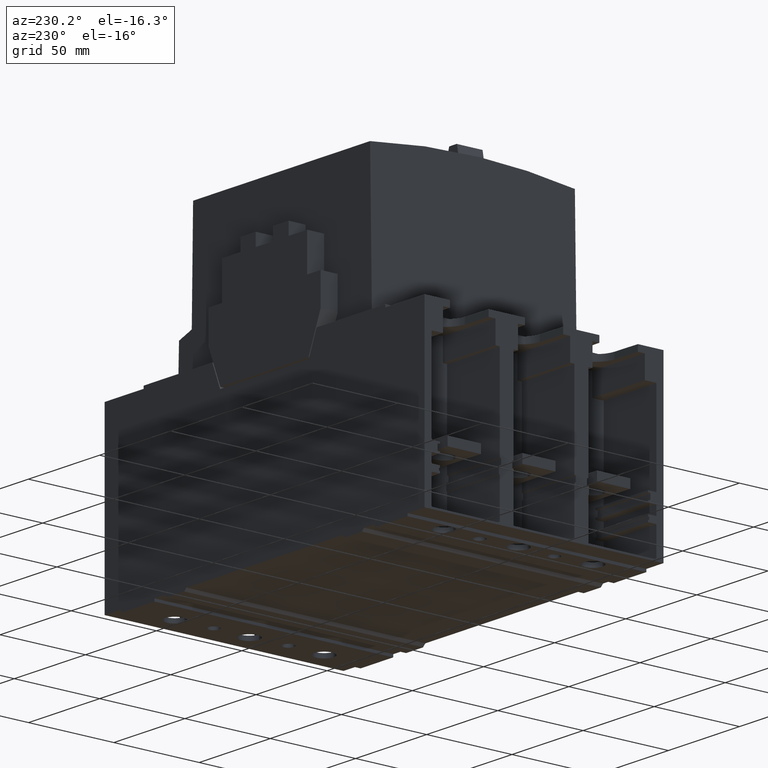
[diagram: clean part render]
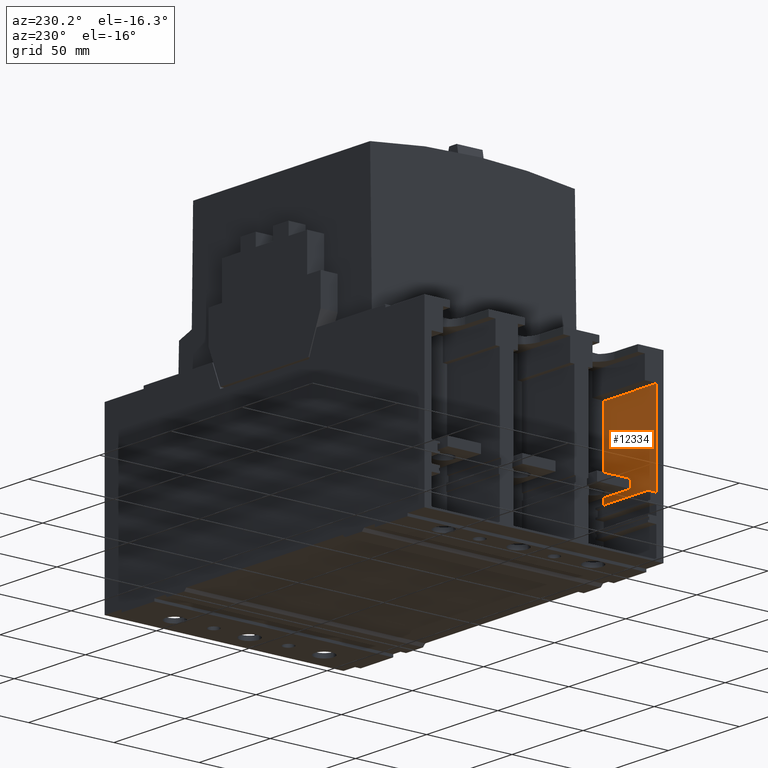
[diagram: same view with one face highlighted and labeled with its STEP entity id]
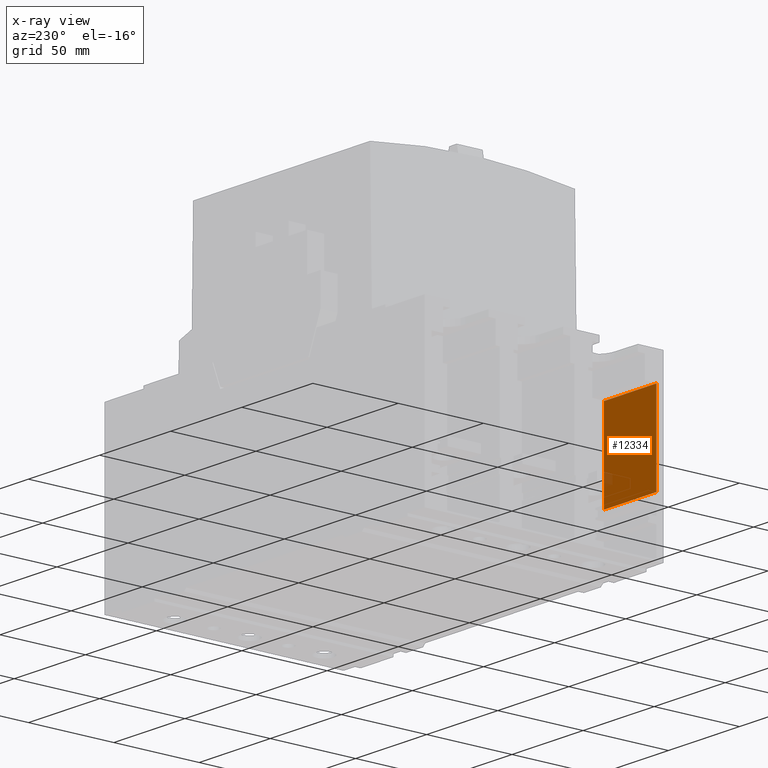
[diagram: x-ray of the same camera — body ghosted, the highlighted face saturated]
A machine part, auxiliary view. The second image highlights one B-rep face of the part: STEP entity #12334.
The next image is the same camera in x-ray: the body ghosted, the highlighted face saturated — about 2% of this face is hidden behind the body in this view.
In plain terms, the highlighted planar face has unit normal (0, -1, 0).
Its self-contained STEP definition (entity closure, byte-faithful):
#2848=DIRECTION('',(0.E0,0.E0,1.E0));
#2849=VECTOR('',#2848,5.096408085927E1);
#2850=CARTESIAN_POINT('',(-1.125441810300E2,-6.583233197810E1,
3.407155270021E1));
#2851=LINE('',#2850,#2849);
#3256=DIRECTION('',(1.E0,0.E0,0.E0));
#3257=VECTOR('',#3256,3.7E1);
#3258=CARTESIAN_POINT('',(-1.125441810300E2,-6.583233197810E1,
8.503563355948E1));
#3259=LINE('',#3258,#3257);
#3263=DIRECTION('',(1.E0,0.E0,0.E0));
#3264=VECTOR('',#3263,3.7E1);
#3265=CARTESIAN_POINT('',(-1.125441810300E2,-6.583233197810E1,
3.407155270021E1));
#3266=LINE('',#3265,#3264);
#4098=DIRECTION('',(0.E0,0.E0,1.E0));
#4099=VECTOR('',#4098,5.096408085927E1);
#4100=CARTESIAN_POINT('',(-7.554418102996E1,-6.583233197810E1,
3.407155270021E1));
#4101=LINE('',#4100,#4099);
#9406=CARTESIAN_POINT('',(-7.554418102996E1,-6.583233197810E1,
3.407155270021E1));
#9407=VERTEX_POINT('',#9406);
#9408=CARTESIAN_POINT('',(-7.554418102996E1,-6.583233197810E1,
8.503563355948E1));
#9409=VERTEX_POINT('',#9408);
#9573=CARTESIAN_POINT('',(-1.125441810300E2,-6.583233197810E1,
3.407155270021E1));
#9574=VERTEX_POINT('',#9573);
#9575=CARTESIAN_POINT('',(-1.125441810300E2,-6.583233197810E1,
8.503563355948E1));
#9576=VERTEX_POINT('',#9575);
#12321=CARTESIAN_POINT('',(-1.125441810300E2,-6.583233197810E1,
3.407155270021E1));
#12322=DIRECTION('',(0.E0,-1.E0,0.E0));
#12323=DIRECTION('',(0.E0,0.E0,1.E0));
#12324=AXIS2_PLACEMENT_3D('',#12321,#12322,#12323);
#12325=PLANE('',#12324);
#12326=ORIENTED_EDGE('',*,*,#11970,.F.);
#12328=ORIENTED_EDGE('',*,*,#12327,.T.);
#12330=ORIENTED_EDGE('',*,*,#12329,.T.);
#12331=ORIENTED_EDGE('',*,*,#12313,.F.);
#12332=EDGE_LOOP('',(#12326,#12328,#12330,#12331));
#12333=FACE_OUTER_BOUND('',#12332,.F.);
#11970=EDGE_CURVE('',#9574,#9576,#2851,.T.);
#12313=EDGE_CURVE('',#9576,#9409,#3259,.T.);
#12327=EDGE_CURVE('',#9574,#9407,#3266,.T.);
#12329=EDGE_CURVE('',#9407,#9409,#4101,.T.);
#12334=ADVANCED_FACE('',(#12333),#12325,.F.);